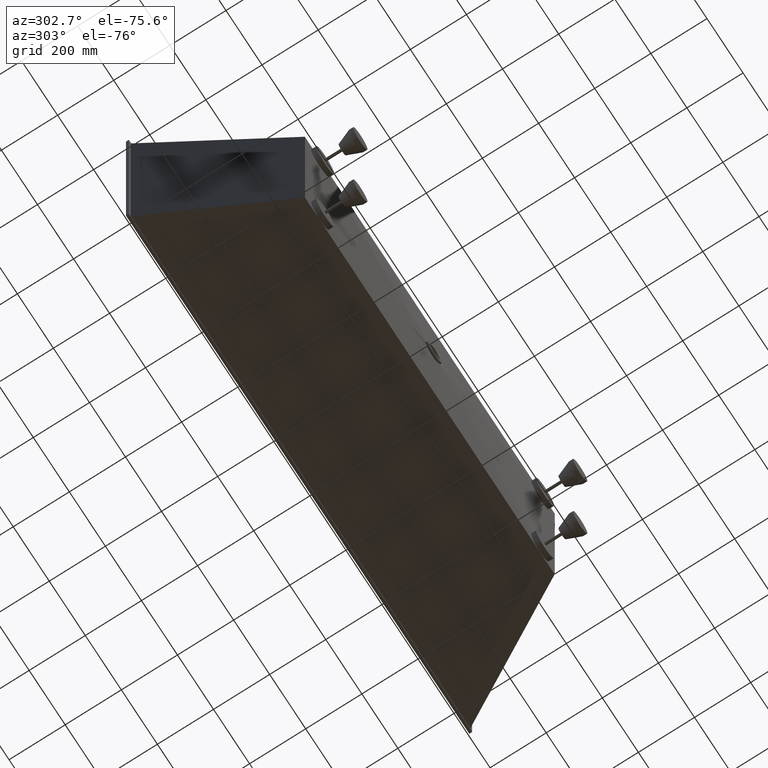
[diagram: clean part render]
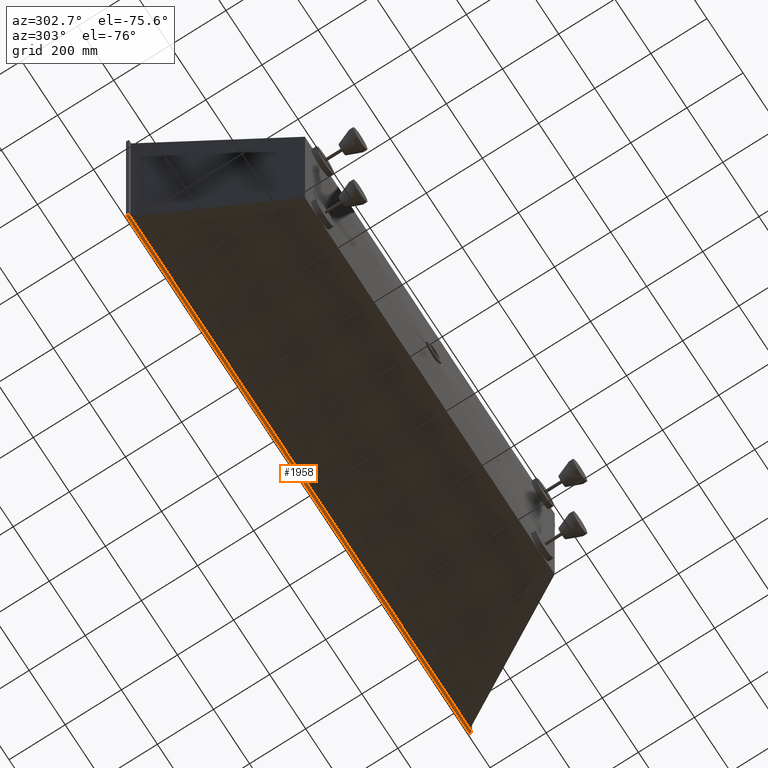
[diagram: same view with one face highlighted and labeled with its STEP entity id]
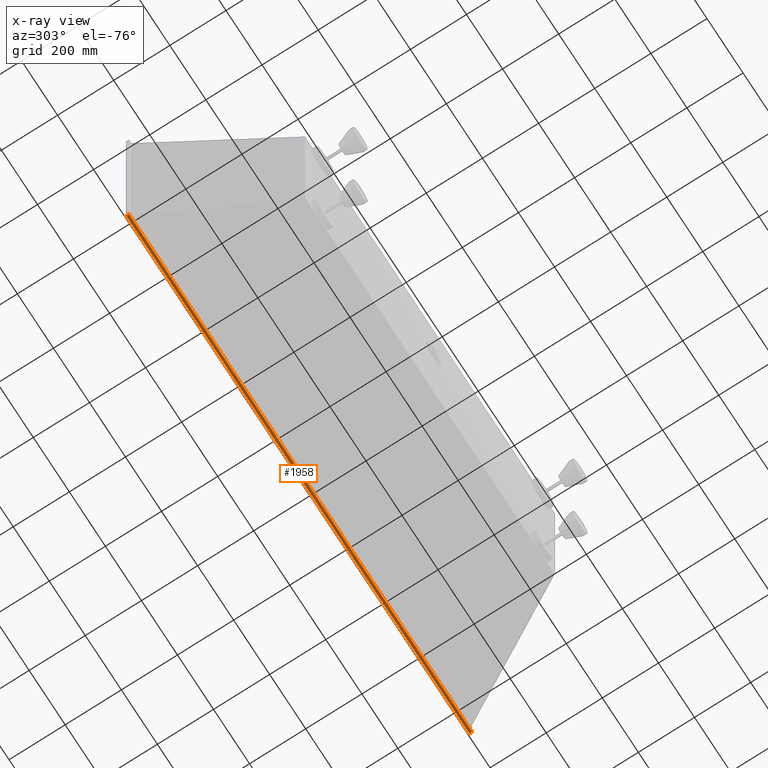
[diagram: x-ray of the same camera — body ghosted, the highlighted face saturated]
A machine part, auxiliary view. The second image highlights one B-rep face of the part: STEP entity #1958.
The next image is the same camera in x-ray: the body ghosted, the highlighted face saturated — about 0% of this face is hidden behind the body in this view.
In plain terms, the highlighted planar face has unit normal (0, 0, -1).
Its self-contained STEP definition (entity closure, byte-faithful):
#432 = EDGE_CURVE ( 'NONE', #8204, #3466, #7950, .T. ) ;
#610 = EDGE_LOOP ( 'NONE', ( #5061, #7435, #6271, #1485 ) ) ;
#804 = EDGE_CURVE ( 'NONE', #5140, #4905, #3917, .T. ) ;
#1364 = CARTESIAN_POINT ( 'NONE',  ( -19.99999999999998900, 0.0000000000000000000, -875.0000000000000000 ) ) ;
#1485 = ORIENTED_EDGE ( 'NONE', *, *, #2921, .T. ) ;
#1815 = DIRECTION ( 'NONE',  ( 0.0000000000000000000, 1.000000000000000000, 0.0000000000000000000 ) ) ;
#1825 = CARTESIAN_POINT ( 'NONE',  ( -19.99999999999998900, 0.0000000000000000000, -875.0000000000000000 ) ) ;
#1958 = ADVANCED_FACE ( 'NONE', ( #8243 ), #7194, .T. ) ;
#2020 = LINE ( 'NONE', #8170, #3573 ) ;
#2296 = CARTESIAN_POINT ( 'NONE',  ( -19.99999999999998900, -10.00000000000000000, -875.0000000000000000 ) ) ;
#2921 = EDGE_CURVE ( 'NONE', #4905, #3466, #7528, .T. ) ;
#3192 = DIRECTION ( 'NONE',  ( -1.000000000000000000, -0.0000000000000000000, -0.0000000000000000000 ) ) ;
#3345 = DIRECTION ( 'NONE',  ( -1.000000000000000000, 0.0000000000000000000, -0.0000000000000000000 ) ) ;
#3466 = VERTEX_POINT ( 'NONE', #1364 ) ;
#3573 = VECTOR ( 'NONE', #8000, 1000.000000000000000 ) ;
#3917 = LINE ( 'NONE', #2296, #7539 ) ;
#3995 = DIRECTION ( 'NONE',  ( -1.000000000000000000, -0.0000000000000000000, -0.0000000000000000000 ) ) ;
#4905 = VERTEX_POINT ( 'NONE', #4983 ) ;
#4983 = CARTESIAN_POINT ( 'NONE',  ( -19.99999999999998900, -10.00000000000000000, -875.0000000000000000 ) ) ;
#5061 = ORIENTED_EDGE ( 'NONE', *, *, #432, .F. ) ;
#5140 = VERTEX_POINT ( 'NONE', #6230 ) ;
#5285 = CARTESIAN_POINT ( 'NONE',  ( -19.99999999999998900, -10.00000000000000000, -875.0000000000000000 ) ) ;
#5772 = VECTOR ( 'NONE', #1815, 1000.000000000000000 ) ;
#5974 = VECTOR ( 'NONE', #3995, 1000.000000000000000 ) ;
#6230 = CARTESIAN_POINT ( 'NONE',  ( 1885.000000000000200, -10.00000000000000000, -875.0000000000000000 ) ) ;
#6271 = ORIENTED_EDGE ( 'NONE', *, *, #804, .T. ) ;
#6471 = AXIS2_PLACEMENT_3D ( 'NONE', #7137, #6634, #3345 ) ;
#6634 = DIRECTION ( 'NONE',  ( 0.0000000000000000000, 0.0000000000000000000, -1.000000000000000000 ) ) ;
#7137 = CARTESIAN_POINT ( 'NONE',  ( -19.99999999999998900, -10.00000000000000000, -875.0000000000000000 ) ) ;
#7194 = PLANE ( 'NONE',  #6471 ) ;
#7435 = ORIENTED_EDGE ( 'NONE', *, *, #7547, .F. ) ;
#7528 = LINE ( 'NONE', #5285, #5772 ) ;
#7539 = VECTOR ( 'NONE', #3192, 1000.000000000000000 ) ;
#7547 = EDGE_CURVE ( 'NONE', #5140, #8204, #2020, .T. ) ;
#7895 = CARTESIAN_POINT ( 'NONE',  ( 1885.000000000000200, 0.0000000000000000000, -875.0000000000000000 ) ) ;
#7950 = LINE ( 'NONE', #1825, #5974 ) ;
#8000 = DIRECTION ( 'NONE',  ( 0.0000000000000000000, 1.000000000000000000, 0.0000000000000000000 ) ) ;
#8170 = CARTESIAN_POINT ( 'NONE',  ( 1885.000000000000200, -10.00000000000000000, -875.0000000000000000 ) ) ;
#8204 = VERTEX_POINT ( 'NONE', #7895 ) ;
#8243 = FACE_OUTER_BOUND ( 'NONE', #610, .T. ) ;